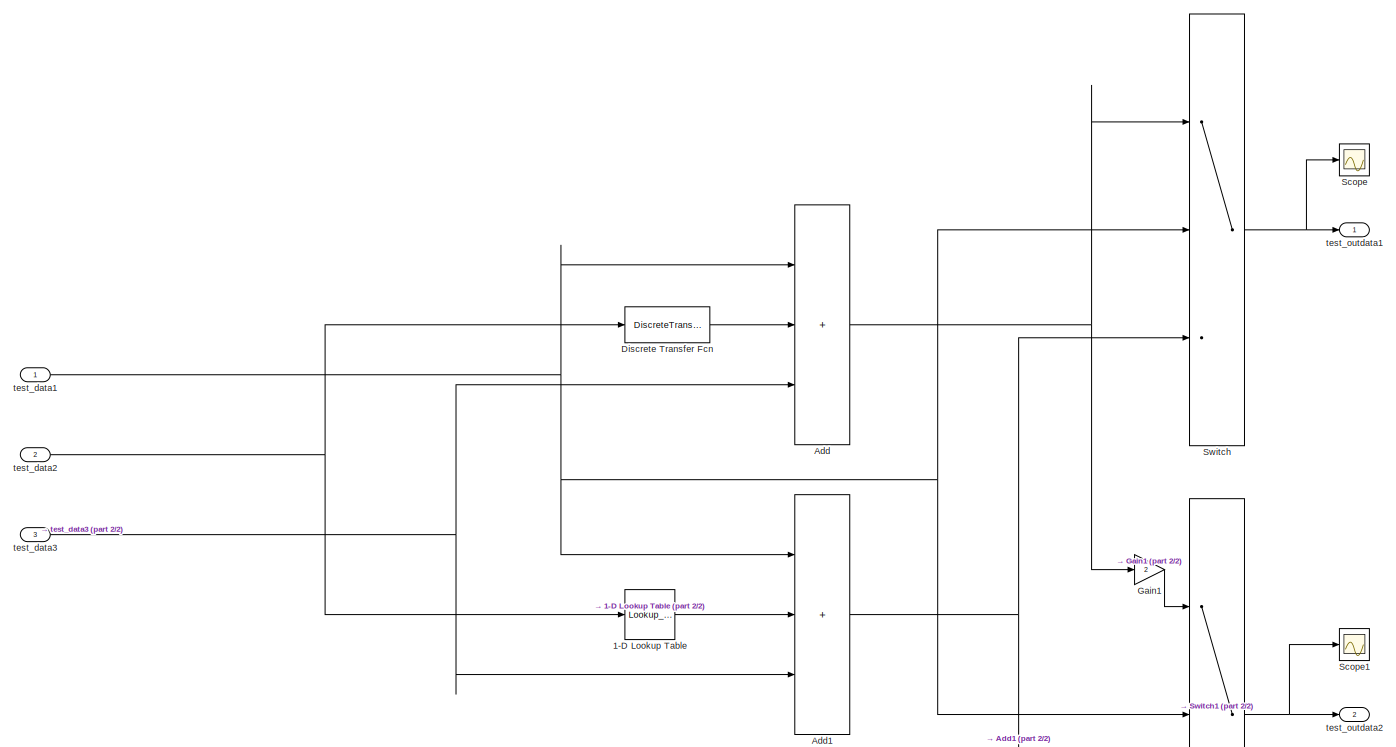
[diagram: root canvas - part 1/2, most of the canvas]
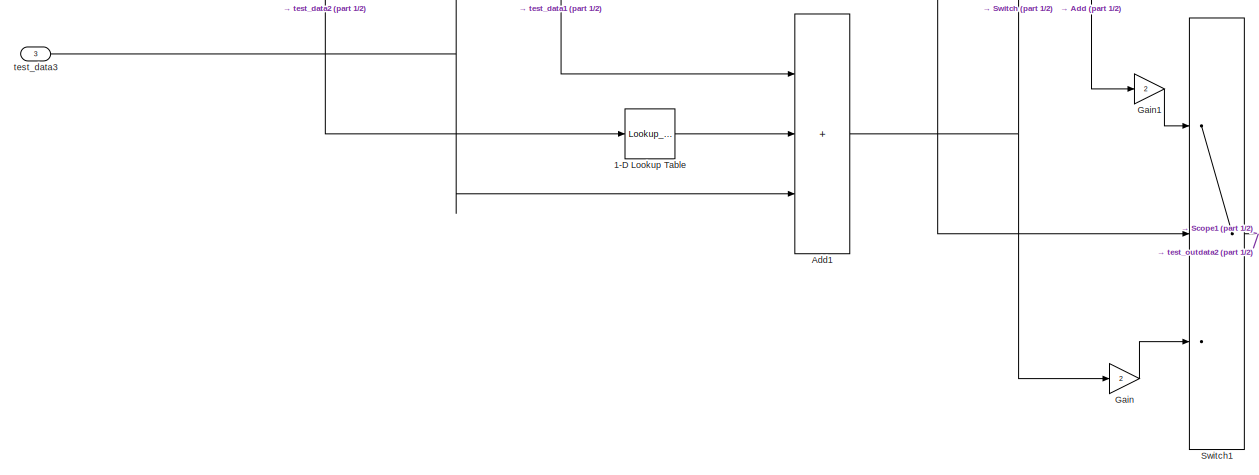
[diagram: root canvas - part 2/2, full width, bottom band]
MODEL slx_5b6a51c284e1
KIND model
CONFIG AbsTol = auto
CONFIG EnableMultiTasking = on
CONFIG FixedStep = 1e-3
CONFIG MaxStep = auto
CONFIG MinStep = auto
CONFIG RelTol = 1e-3
CONFIG SampleTimeConstraint = Unconstrained
CONFIG Solver = FixedStepDiscrete
CONFIG SolverName = FixedStepDiscrete
CONFIG StartTime = 0.0
CONFIG StopTime = 38
BLOCK [Lookup_n-D] 1-D Lookup Table
  BreakpointsForDimension1 = [-5:5]
  NumberOfTableDimensions = 1
  Ports = [1, 1]
  Table = tanh([-5:5])
BLOCK [Sum] Add
  IconShape = rectangular
  Inputs = +++
  Ports = [3, 1]
BLOCK [Sum] Add1
  IconShape = rectangular
  Inputs = +++
  Ports = [3, 1]
  SampleTime = .01
BLOCK [DiscreteTransferFcn] Discrete Transfer Fcn
  Denominator = [1 .09 0.5]
  InputPortMap = u0
  Numerator = [1 .7]
  Ports = [1, 1]
  SampleTime = .01
BLOCK [Gain] Gain
  Gain = 2
BLOCK [Gain] Gain1
  Gain = 2
BLOCK [Scope] Scope
  Floating = off
  NumInputPorts = 1
  Ports = [1]
  ScopeSpecificationString = Simulink.scopes.TimeScopeBlockCfg('CurrentConfiguration', extmgr.ConfigurationSet(extmgr.Configuration('Core','General UI',true),extmgr.Configuration('Core','Source UI',true),extmgr.Configuration('Sources','WiredSimulink',true),extmgr.Configuration('Visuals','Time Domain',true,'SerializedDisplays',{struct('MinYLimReal','-1.00000','MaxYLimReal','1.00000','YLabelReal','','MinYLimMag','0.00000','MaxY...<+1381ch>
BLOCK [Scope] Scope1
  Floating = off
  NumInputPorts = 1
  Ports = [1]
  ScopeSpecificationString = Simulink.scopes.TimeScopeBlockCfg('CurrentConfiguration', extmgr.ConfigurationSet(extmgr.Configuration('Core','General UI',true),extmgr.Configuration('Core','Source UI',true),extmgr.Configuration('Sources','WiredSimulink',true,'DataLoggingVariableName','ScopeData1'),extmgr.Configuration('Visuals','Time Domain',true,'SerializedDisplays',{struct('MinYLimReal','-1.00000','MaxYLimReal','1.00000','YLab...<+1423ch>
BLOCK [Switch] Switch
  Criteria = u2 > Threshold
  InputSameDT = off
  SaturateOnIntegerOverflow = off
BLOCK [Switch] Switch1
  Criteria = u2 > Threshold
  InputSameDT = off
  SaturateOnIntegerOverflow = off
BLOCK [Inport] test_data1
BLOCK [Inport] test_data2
  Port = 2
BLOCK [Inport] test_data3
  Port = 3
BLOCK [Outport] test_outdata1
BLOCK [Outport] test_outdata2
  Port = 2
LINE 1-D Lookup Table:1 -> Add1:2
NET Add1:1 -> Gain:1, Switch:3
NET Add:1 -> Gain1:1, Switch:1
LINE Discrete Transfer Fcn:1 -> Add:2
LINE Gain1:1 -> Switch1:1
LINE Gain:1 -> Switch1:3
NET Switch1:1 -> Scope1:1, test_outdata2:1
NET Switch:1 -> Scope:1, test_outdata1:1
NET test_data1:1 -> Add1:1, Add:1, Switch1:2, Switch:2
NET test_data2:1 -> 1-D Lookup Table:1, Discrete Transfer Fcn:1
NET test_data3:1 -> Add1:3, Add:3
note: NET lines group one-source signal fan-out (src -> all destinations, sorted); 1:1 wires keep LINE
